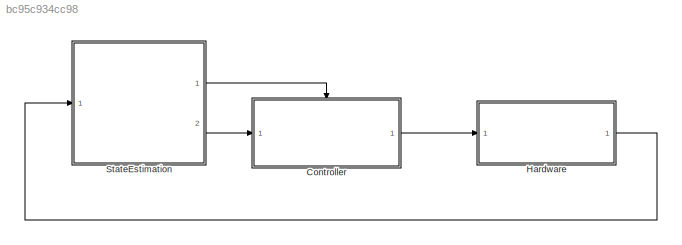
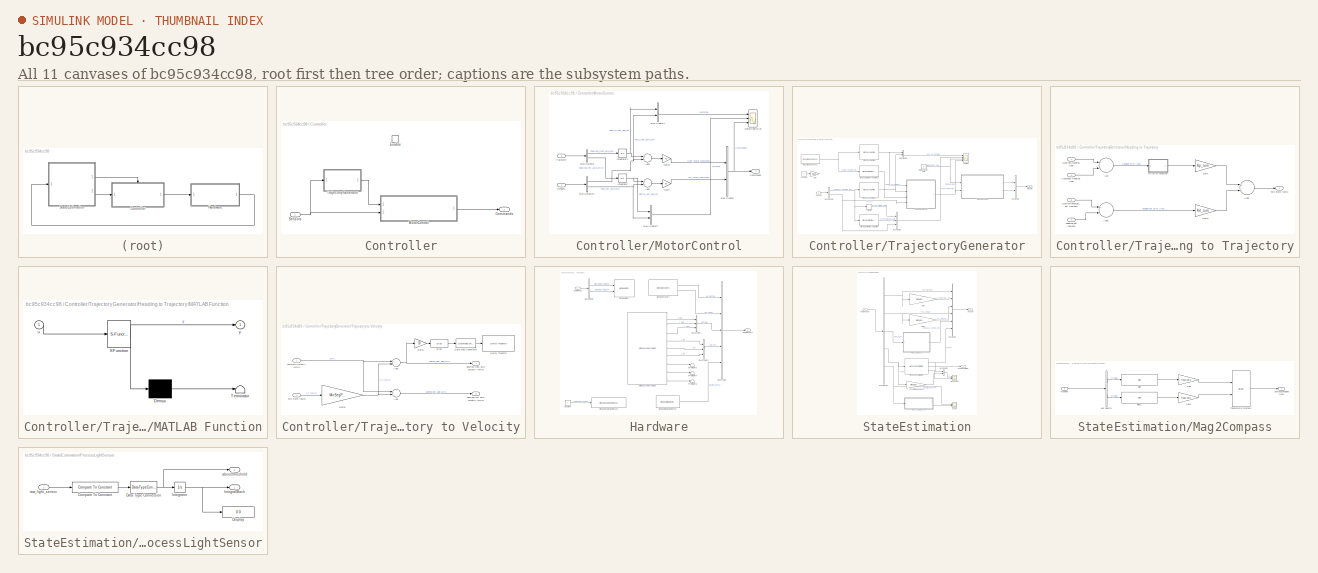
[diagram: thumbnail index - all 11 canvases of the model, root first then tree order]
MODEL slx_bc95c934cc98
KIND model
CONFIG PreLoadFcn = TS = 0.1;\nkp = 5; % motor proportional control constant\nKp_turn = 1; % Proportional feedback constant for heading control\nKd_turn = 0.1; % Derivative feedback constant for heading control\nMinSeg_Parameters\nmagXbias	= -27.850358;\nmagZbias	= -65.539659;\nmagXgain	= 0.013988;\nmagZgain	= 0.014555;\nRSTime = [0.0 10.0 20.0 20.5 21.0 21.5 22.0 22.5 23.0 23.5 24.0 24.5 25.0 35.0 35.5 36.0 36.5 37.0 37.5 38...<+1258ch>
BLOCK [SubSystem] Controller
  FunctionWithSeparateData = off
  MaskHideContents = off
  MinAlgLoopOccurrences = off
  Opaque = off
  Ports = [1, 1, 1]
  PropExecContextOutsideSubsystem = off
  RTWSystemCode = Auto
  RequestExecContextInheritance = off
BLOCK [Outport] Controller/Commands
  IconDisplay = Port number
BLOCK [EnablePort] Controller/Enable
  Ports = []
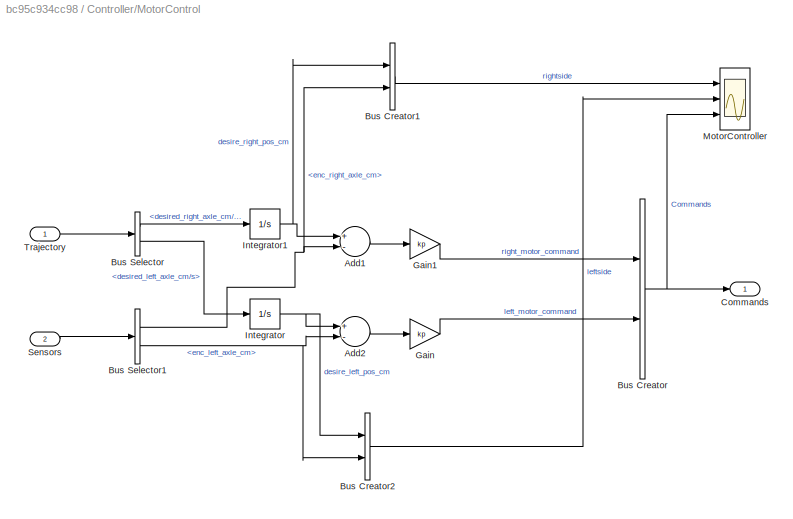
BLOCK [SubSystem] Controller/MotorControl
  FunctionWithSeparateData = off
  MaskHideContents = off
  MinAlgLoopOccurrences = off
  Opaque = off
  Ports = [2, 1]
  PropExecContextOutsideSubsystem = off
  RTWSystemCode = Auto
  RequestExecContextInheritance = off
BLOCK [Sum] Controller/MotorControl/Add1
  InputSameDT = off
  Inputs = +-
  OutDataTypeStr = Inherit: Inherit via internal rule
  Ports = [2, 1]
  SaturateOnIntegerOverflow = off
BLOCK [Sum] Controller/MotorControl/Add2
  InputSameDT = off
  Inputs = +-
  OutDataTypeStr = Inherit: Inherit via internal rule
  Ports = [2, 1]
  SaturateOnIntegerOverflow = off
BLOCK [BusCreator] Controller/MotorControl/Bus Creator
  DisplayOption = bar
  Inputs = 2
  Ports = [2, 1]
BLOCK [BusCreator] Controller/MotorControl/Bus Creator1
  DisplayOption = bar
  Inputs = 2
  Ports = [2, 1]
BLOCK [BusCreator] Controller/MotorControl/Bus Creator2
  DisplayOption = bar
  Inputs = 2
  Ports = [2, 1]
BLOCK [BusSelector] Controller/MotorControl/Bus Selector
  OutputSignals = desired_right_axle_cm/s,desired_left_axle_cm/s
  Ports = [1, 2]
BLOCK [BusSelector] Controller/MotorControl/Bus Selector1
  OutputSignals = enc_right_axle_cm,enc_left_axle_cm
  Ports = [1, 2]
BLOCK [Outport] Controller/MotorControl/Commands
  IconDisplay = Port number
BLOCK [Gain] Controller/MotorControl/Gain
  Gain = kp
  OutDataTypeStr = Inherit: Inherit via internal rule
  ParamDataTypeStr = Inherit: Inherit via internal rule
  SaturateOnIntegerOverflow = off
BLOCK [Gain] Controller/MotorControl/Gain1
  Gain = kp
  OutDataTypeStr = Inherit: Inherit via internal rule
  ParamDataTypeStr = Inherit: Inherit via internal rule
  SaturateOnIntegerOverflow = off
BLOCK [Integrator] Controller/MotorControl/Integrator
  Ports = [1, 1]
BLOCK [Integrator] Controller/MotorControl/Integrator1
  Ports = [1, 1]
BLOCK [Scope] Controller/MotorControl/MotorController
  DataFormat = StructureWithTime
  Floating = off
  LimitDataPoints = off
  NumInputPorts = 3
  Ports = [3]
  SampleTime = 0
  SaveName = MCData
  SaveToWorkspace = on
  ShowLegends = off
  TimeRange = 10
  YMax = 800~800~650
  YMin = -700~-700~0
  ZoomMode = yonly
BLOCK [Inport] Controller/MotorControl/Sensors
  IconDisplay = Port number
  Port = 2
BLOCK [Inport] Controller/MotorControl/Trajectory
  IconDisplay = Port number
BLOCK [Inport] Controller/Sensors
  IconDisplay = Port number
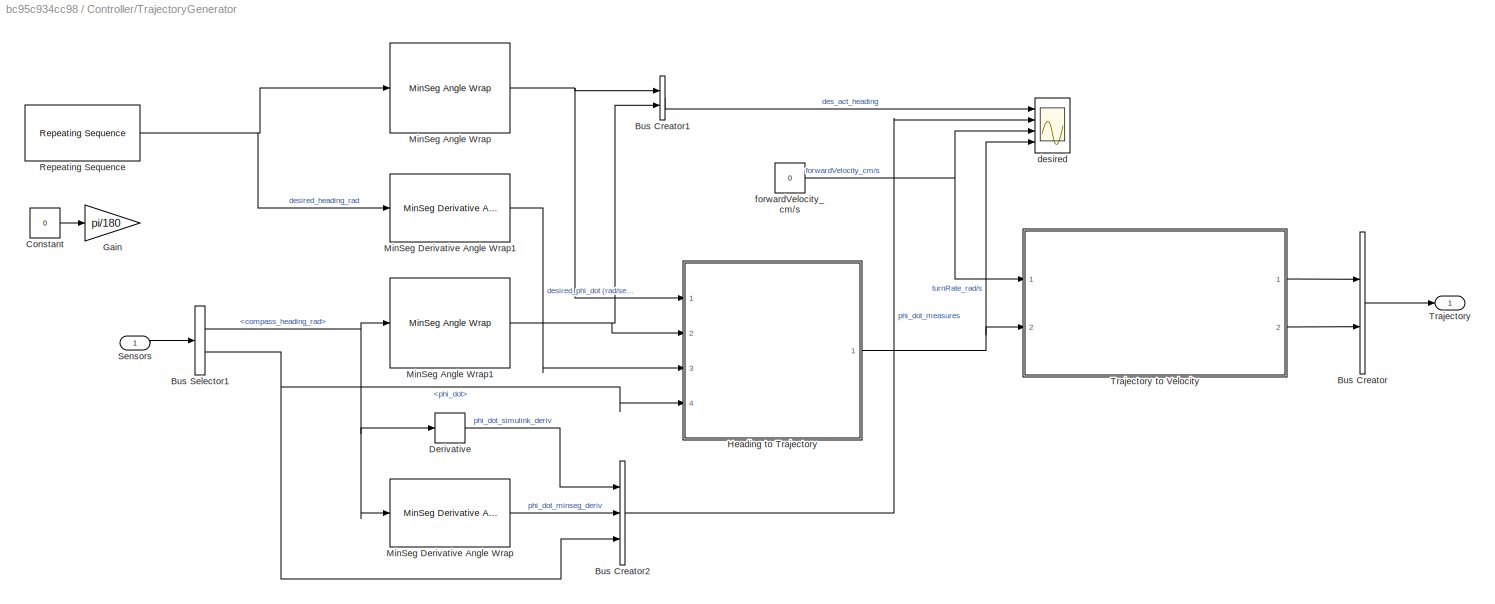
BLOCK [SubSystem] Controller/TrajectoryGenerator
  FunctionWithSeparateData = off
  MaskHideContents = off
  MinAlgLoopOccurrences = off
  Opaque = off
  Ports = [1, 1]
  PropExecContextOutsideSubsystem = off
  RTWSystemCode = Auto
  RequestExecContextInheritance = off
BLOCK [BusCreator] Controller/TrajectoryGenerator/Bus Creator
  DisplayOption = bar
  Inputs = 2
  Ports = [2, 1]
BLOCK [BusCreator] Controller/TrajectoryGenerator/Bus Creator1
  DisplayOption = bar
  Inputs = 2
  Ports = [2, 1]
BLOCK [BusCreator] Controller/TrajectoryGenerator/Bus Creator2
  DisplayOption = bar
  Inputs = 3
  Ports = [3, 1]
BLOCK [BusSelector] Controller/TrajectoryGenerator/Bus Selector1
  OutputSignals = compass_heading_rad,phi_dot
  Ports = [1, 2]
BLOCK [Constant] Controller/TrajectoryGenerator/Constant
  Value = 0
BLOCK [Derivative] Controller/TrajectoryGenerator/Derivative
BLOCK [Gain] Controller/TrajectoryGenerator/Gain
  Gain = pi/180
  OutDataTypeStr = Inherit: Inherit via internal rule
  ParamDataTypeStr = Inherit: Inherit via internal rule
  SaturateOnIntegerOverflow = off
BLOCK [SubSystem] Controller/TrajectoryGenerator/Heading to Trajectory
  FunctionWithSeparateData = off
  MaskHideContents = off
  MinAlgLoopOccurrences = off
  Opaque = off
  Ports = [4, 1]
  PropExecContextOutsideSubsystem = off
  RTWSystemCode = Auto
  RequestExecContextInheritance = off
BLOCK [Sum] Controller/TrajectoryGenerator/Heading to Trajectory/Add
  InputSameDT = off
  Inputs = +-
  OutDataTypeStr = Inherit: Inherit via internal rule
  Ports = [2, 1]
  SaturateOnIntegerOverflow = off
BLOCK [Sum] Controller/TrajectoryGenerator/Heading to Trajectory/Add1
  InputSameDT = off
  Inputs = +-
  OutDataTypeStr = Inherit: Inherit via internal rule
  Ports = [2, 1]
  SaturateOnIntegerOverflow = off
BLOCK [Sum] Controller/TrajectoryGenerator/Heading to Trajectory/Add2
  InputSameDT = off
  OutDataTypeStr = Inherit: Inherit via internal rule
  Ports = [2, 1]
  SaturateOnIntegerOverflow = off
BLOCK [Inport] Controller/TrajectoryGenerator/Heading to Trajectory/Compass Heading (rad)
  IconDisplay = Port number
  Port = 2
BLOCK [Inport] Controller/TrajectoryGenerator/Heading to Trajectory/Desired Heading (rad)
  IconDisplay = Port number
BLOCK [Inport] Controller/TrajectoryGenerator/Heading to Trajectory/Desired heading_dot (rad//sec)
  IconDisplay = Port number
  Port = 3
BLOCK [Gain] Controller/TrajectoryGenerator/Heading to Trajectory/Gain
  Gain = Kp_turn
  OutDataTypeStr = Inherit: Inherit via internal rule
  ParamDataTypeStr = Inherit: Inherit via internal rule
  SaturateOnIntegerOverflow = off
BLOCK [Gain] Controller/TrajectoryGenerator/Heading to Trajectory/Gain1
  Gain = Kd_turn
  OutDataTypeStr = Inherit: Inherit via internal rule
  ParamDataTypeStr = Inherit: Inherit via internal rule
  SaturateOnIntegerOverflow = off
BLOCK [SubSystem] Controller/TrajectoryGenerator/Heading to Trajectory/MATLAB Function
  ErrorFcn = Stateflow.Translate.translate
  FunctionWithSeparateData = off
  MaskHideContents = off
  MinAlgLoopOccurrences = off
  Opaque = off
  PermitHierarchicalResolution = ExplicitOnly
  Ports = [1, 1]
  PropExecContextOutsideSubsystem = off
  RTWSystemCode = Auto
  RequestExecContextInheritance = off
  SFBlockType = MATLAB Function
  TreatAsAtomicUnit = on
BLOCK [Demux] Controller/TrajectoryGenerator/Heading to Trajectory/MATLAB Function/ Demux 
  Outputs = 1
  Ports = [1, 1]
BLOCK [S-Function] Controller/TrajectoryGenerator/Heading to Trajectory/MATLAB Function/ SFunction 
  EnableBusSupport = on
  FunctionName = sf_sfun
  PortCounts = [1 2]
  Ports = [1, 2]
  Tag = Stateflow S-Function CompassCartBox 2
BLOCK [Terminator] Controller/TrajectoryGenerator/Heading to Trajectory/MATLAB Function/ Terminator 
BLOCK [Inport] Controller/TrajectoryGenerator/Heading to Trajectory/MATLAB Function/u
  IconDisplay = Port number
BLOCK [Outport] Controller/TrajectoryGenerator/Heading to Trajectory/MATLAB Function/y
  IconDisplay = Port number
BLOCK [Outport] Controller/TrajectoryGenerator/Heading to Trajectory/Turn Rate (rad//s)
  IconDisplay = Port number
BLOCK [Inport] Controller/TrajectoryGenerator/Heading to Trajectory/heading_dot (rad//sec)
  IconDisplay = Port number
  Port = 4
BLOCK [Reference] Controller/TrajectoryGenerator/MinSeg Angle Wrap  REF=MinSegLibrary_V2/MinSeg Angle Wrap
  Ports = [1, 1]
  SourceBlock = MinSegLibrary_V2/MinSeg Angle Wrap
  SourceType = Wrap Angle
BLOCK [Reference] Controller/TrajectoryGenerator/MinSeg Angle Wrap1  REF=MinSegLibrary_V2/MinSeg Angle Wrap
  Ports = [1, 1]
  SourceBlock = MinSegLibrary_V2/MinSeg Angle Wrap
  SourceType = Wrap Angle
BLOCK [Reference] Controller/TrajectoryGenerator/MinSeg Derivative Angle Wrap  REF=MinSegLibrary_V2/MinSeg Derivative Angle Wrap
  Ports = [1, 1]
  SourceBlock = MinSegLibrary_V2/MinSeg Derivative Angle Wrap
  SourceType = Derivative with angle wrap
  daw_init_state = 0
  daw_ts = TS
BLOCK [Reference] Controller/TrajectoryGenerator/MinSeg Derivative Angle Wrap1  REF=MinSegLibrary_V2/MinSeg Derivative Angle Wrap
  Ports = [1, 1]
  SourceBlock = MinSegLibrary_V2/MinSeg Derivative Angle Wrap
  SourceType = Derivative with angle wrap
  daw_init_state = 0
  daw_ts = TS
BLOCK [Reference] Controller/TrajectoryGenerator/Repeating Sequence  REF=simulink/Sources/Repeating
Sequence
  Ports = [0, 1]
  SourceBlock = simulink/Sources/Repeating\nSequence
  SourceType = Repeating table
  rep_seq_t = RSTime
  rep_seq_y = RSHeading
BLOCK [Inport] Controller/TrajectoryGenerator/Sensors
  IconDisplay = Port number
BLOCK [Outport] Controller/TrajectoryGenerator/Trajectory
  IconDisplay = Port number
BLOCK [SubSystem] Controller/TrajectoryGenerator/Trajectory to Velocity
  FunctionWithSeparateData = off
  MaskHideContents = off
  MinAlgLoopOccurrences = off
  Opaque = off
  Ports = [2, 2]
  PropExecContextOutsideSubsystem = off
  RTWSystemCode = Auto
  RequestExecContextInheritance = off
BLOCK [Sum] Controller/TrajectoryGenerator/Trajectory to Velocity/Add
  InputSameDT = off
  OutDataTypeStr = Inherit: Inherit via internal rule
  Ports = [2, 1]
  SaturateOnIntegerOverflow = off
BLOCK [Sum] Controller/TrajectoryGenerator/Trajectory to Velocity/Add1
  InputSameDT = off
  Inputs = +-
  OutDataTypeStr = Inherit: Inherit via internal rule
  Ports = [2, 1]
  SaturateOnIntegerOverflow = off
BLOCK [Bias] Controller/TrajectoryGenerator/Trajectory to Velocity/Bias
  Bias = 100
  Commented = on
  SaturateOnIntegerOverflow = off
BLOCK [DataTypeConversion] Controller/TrajectoryGenerator/Trajectory to Velocity/Data Type Conversion
  Commented = on
  OutDataTypeStr = uint8
  RndMeth = Floor
  SaturateOnIntegerOverflow = off
BLOCK [Inport] Controller/TrajectoryGenerator/Trajectory to Velocity/Forward Velocity (cm//s)
  IconDisplay = Port number
BLOCK [Gain] Controller/TrajectoryGenerator/Trajectory to Velocity/Gain2
  Commented = on
  Gain = 10
  OutDataTypeStr = Inherit: Inherit via internal rule
  ParamDataTypeStr = Inherit: Inherit via internal rule
  SaturateOnIntegerOverflow = off
BLOCK [Gain] Controller/TrajectoryGenerator/Trajectory to Velocity/Gain6
  Gain = MinSegParam.robotWidth
  OutDataTypeStr = Inherit: Inherit via internal rule
  ParamDataTypeStr = Inherit: Inherit via internal rule
  SaturateOnIntegerOverflow = off
BLOCK [Reference] Controller/TrajectoryGenerator/Trajectory to Velocity/Serial Transmit  REF=arduinolib/Serial Transmit
  Commented = on
  Ports = [1]
  SourceBlock = arduinolib/Serial Transmit
  SourceType = Arduino Serial Transmit
  portNumber = 0
BLOCK [Inport] Controller/TrajectoryGenerator/Trajectory to Velocity/Turn Rate (rad//s)
  IconDisplay = Port number
  Port = 2
BLOCK [Outport] Controller/TrajectoryGenerator/Trajectory to Velocity/desired left axle velocity (cm//s)
  IconDisplay = Port number
  Port = 2
BLOCK [Outport] Controller/TrajectoryGenerator/Trajectory to Velocity/desired right axle velocity (cm//s)
  IconDisplay = Port number
BLOCK [Scope] Controller/TrajectoryGenerator/desired
  DataFormat = StructureWithTime
  Floating = off
  LimitDataPoints = off
  NumInputPorts = 4
  Ports = [4]
  SampleTime = 0
  SaveName = HeadingData
  SaveToWorkspace = on
  ShowLegends = on
  TimeRange = 10
  YMax = 4~10~1~0.35
  YMin = -4~-70~-1~-0.1
BLOCK [Constant] Controller/TrajectoryGenerator/forwardVelocity_cm//s
  Value = 0
BLOCK [SubSystem] Hardware
  FunctionWithSeparateData = off
  MaskHideContents = off
  MinAlgLoopOccurrences = off
  Opaque = off
  Ports = [1, 1]
  PropExecContextOutsideSubsystem = off
  RTWSystemCode = Auto
  RequestExecContextInheritance = off
BLOCK [BusCreator] Hardware/Bus Creator
  DisplayOption = bar
  Inputs = 5
  Ports = [5, 1]
BLOCK [BusCreator] Hardware/Bus Creator1
  DisplayOption = bar
  Inputs = 3
  Ports = [3, 1]
BLOCK [BusCreator] Hardware/Bus Creator2
  DisplayOption = bar
  Inputs = 3
  Ports = [3, 1]
BLOCK [BusSelector] Hardware/Bus Selector
  OutputSignals = right_motor_command,left_motor_command
  Ports = [1, 2]
BLOCK [Inport] Hardware/Commands
  IconDisplay = Port number
BLOCK [Constant] Hardware/Constant
BLOCK [Reference] Hardware/MinSeg AccelGryoMagn  REF=MinSegLibrary_V2/MinSeg AccelGryoMagn
  Ports = [0, 9]
  SourceBlock = MinSegLibrary_V2/MinSeg AccelGryoMagn
  SourceType = MinSeg MagnetometerGryo
  maskTS = TS
BLOCK [Reference] Hardware/MinSeg EnableLightSensor  REF=MinSegLibrary_V2/MinSeg EnableLightSensor
  Ports = [1]
  SourceBlock = MinSegLibrary_V2/MinSeg EnableLightSensor
  SourceType = MinSeg Enable Light Sensor
BLOCK [Reference] Hardware/MinSeg Encoders  REF=MinSegLibrary_V2/MinSeg Encoders
  Ports = [0, 2]
  SourceBlock = MinSegLibrary_V2/MinSeg Encoders
  SourceType = MinSeg Encoders
  maskTS = TS
BLOCK [Reference] Hardware/MinSeg Motors  REF=MinSegLibrary_V2/MinSeg Motors
  Ports = [2]
  SourceBlock = MinSegLibrary_V2/MinSeg Motors
  SourceType = MinSeg Motors
BLOCK [Reference] Hardware/MinSeg OpticalLightSensor  REF=MinSegLibrary_V2/MinSeg OpticalLightSensor
  Ports = [0, 1]
  SourceBlock = MinSegLibrary_V2/MinSeg OpticalLightSensor
  SourceType = MinSeg Light Sensor
  maskTS = TS
BLOCK [Outport] Hardware/RawSensors
  IconDisplay = Port number
BLOCK [Terminator] Hardware/Terminator3
BLOCK [Terminator] Hardware/Terminator4
BLOCK [Terminator] Hardware/Terminator5
BLOCK [SubSystem] StateEstimation
  FunctionWithSeparateData = off
  MaskHideContents = off
  MinAlgLoopOccurrences = off
  Opaque = off
  Ports = [1, 2]
  PropExecContextOutsideSubsystem = off
  RTWSystemCode = Auto
  RequestExecContextInheritance = off
BLOCK [BusCreator] StateEstimation/Bus Creator
  DisplayOption = bar
  Inputs = 6
  Ports = [6, 1]
BLOCK [BusCreator] StateEstimation/Bus Creator1
  DisplayOption = bar
  Inputs = 2
  Ports = [2, 1]
BLOCK [BusSelector] StateEstimation/Bus Selector
  OutputSignals = enc_right_rad,enc_left_rad,raw_mag,raw_gyro.y_rot,raw_light_sensor
  Ports = [1, 5]
BLOCK [Outport] StateEstimation/EnableController
  IconDisplay = Port number
BLOCK [Gain] StateEstimation/Gain
  Gain = MinSegParam.wheelRadius
  OutDataTypeStr = Inherit: Inherit via internal rule
  ParamDataTypeStr = Inherit: Inherit via internal rule
  SaturateOnIntegerOverflow = off
BLOCK [Gain] StateEstimation/Gain1
  Gain = MinSegParam.wheelRadius
  OutDataTypeStr = Inherit: Inherit via internal rule
  ParamDataTypeStr = Inherit: Inherit via internal rule
  SaturateOnIntegerOverflow = off
BLOCK [Scope] StateEstimation/GryoScope
  DataFormat = StructureWithTime
  Floating = off
  MaxDataPoints = 10000
  NumInputPorts = 2
  Ports = [2]
  SampleTime = 0
  SaveName = GyroScopeData
  SaveToWorkspace = on
  ShowLegends = off
  YMax = 2.75~-0.00448989
  YMin = -1.25~-0.00448989
BLOCK [SubSystem] StateEstimation/Mag2Compass
  FunctionWithSeparateData = off
  MaskHideContents = off
  MinAlgLoopOccurrences = off
  Opaque = off
  Ports = [1, 1]
  PropExecContextOutsideSubsystem = off
  RTWSystemCode = Auto
  RequestExecContextInheritance = off
BLOCK [Bias] StateEstimation/Mag2Compass/Bias
  Bias = -magXbias
  SaturateOnIntegerOverflow = off
BLOCK [Bias] StateEstimation/Mag2Compass/Bias1
  Bias = -magZbias
  SaturateOnIntegerOverflow = off
BLOCK [BusSelector] StateEstimation/Mag2Compass/Bus Selector
  OutputSignals = x_mag,z_mag
  Ports = [1, 2]
BLOCK [Outport] StateEstimation/Mag2Compass/CompassHeading (rads)
  IconDisplay = Port number
BLOCK [Gain] StateEstimation/Mag2Compass/Gain
  Gain = magXgain
  OutDataTypeStr = Inherit: Inherit via internal rule
  ParamDataTypeStr = Inherit: Inherit via internal rule
  SaturateOnIntegerOverflow = off
BLOCK [Gain] StateEstimation/Mag2Compass/Gain1
  Gain = magZgain
  OutDataTypeStr = Inherit: Inherit via internal rule
  ParamDataTypeStr = Inherit: Inherit via internal rule
  SaturateOnIntegerOverflow = off
BLOCK [Inport] StateEstimation/Mag2Compass/MagRaw
  IconDisplay = Port number
BLOCK [Trigonometry] StateEstimation/Mag2Compass/Trigonometric Function1
  Operator = atan2
  Ports = [2, 1]
BLOCK [Reference] StateEstimation/MinSeg Gyro Calibration  REF=MinSegLibrary_V2/MinSeg Gyro Calibration
  Ports = [1, 3]
  SourceBlock = MinSegLibrary_V2/MinSeg Gyro Calibration
  SourceType = MinSeg Gyro Calibrate
BLOCK [SubSystem] StateEstimation/ProcessLightSensor
  FunctionWithSeparateData = off
  MaskHideContents = off
  MinAlgLoopOccurrences = off
  Opaque = off
  Ports = [1, 2]
  PropExecContextOutsideSubsystem = off
  RTWSystemCode = Auto
  RequestExecContextInheritance = off
BLOCK [Reference] StateEstimation/ProcessLightSensor/Compare To Constant  REF=simulink/Logic and Bit
Operations/Compare
To Constant
  OutDataTypeStr = uint8
  Ports = [1, 1]
  SourceBlock = simulink/Logic and Bit\nOperations/Compare\nTo Constant
  SourceType = Compare To Constant
  ZeroCross = on
  const = 450
  relop = >=
BLOCK [DataTypeConversion] StateEstimation/ProcessLightSensor/Data Type Conversion
  OutDataTypeStr = double
  RndMeth = Floor
  SaturateOnIntegerOverflow = off
BLOCK [Display] StateEstimation/ProcessLightSensor/Display
  Decimation = 1
  Ports = [1]
BLOCK [Outport] StateEstimation/ProcessLightSensor/IntegralBlack
  IconDisplay = Port number
BLOCK [Integrator] StateEstimation/ProcessLightSensor/Integrator
  Ports = [1, 1]
BLOCK [Outport] StateEstimation/ProcessLightSensor/abovethreshold
  IconDisplay = Port number
  Port = 2
BLOCK [Inport] StateEstimation/ProcessLightSensor/raw_light_sensor
  IconDisplay = Port number
BLOCK [Inport] StateEstimation/RawSensors
  IconDisplay = Port number
BLOCK [Scope] StateEstimation/Scope
  DataFormat = StructureWithTime
  Floating = off
  NumInputPorts = 2
  Ports = [2]
  SampleTime = 0
  SaveName = ScopeData2
  ShowLegends = off
  YMax = 650~1
  YMin = 250~0
BLOCK [Outport] StateEstimation/Sensors
  IconDisplay = Port number
  Port = 2
BLOCK [Gain] StateEstimation/conver to radians//sed2
  Gain = MinSegParam.GS
  OutDataTypeStr = Inherit: Inherit via internal rule
  ParamDataTypeStr = Inherit: Inherit via internal rule
  SaturateOnIntegerOverflow = off
LINE Controller/MotorControl/Add1:1 -> Controller/MotorControl/Gain1:1
LINE Controller/MotorControl/Add2:1 -> Controller/MotorControl/Gain:1
LINE Controller/MotorControl/Bus Creator1:1 -> Controller/MotorControl/MotorController:1
LINE Controller/MotorControl/Bus Creator2:1 -> Controller/MotorControl/MotorController:2
NET Controller/MotorControl/Bus Creator:1 -> Controller/MotorControl/Commands:1, Controller/MotorControl/MotorController:3
NET Controller/MotorControl/Bus Selector1:1 -> Controller/MotorControl/Add1:2, Controller/MotorControl/Bus Creator1:2
NET Controller/MotorControl/Bus Selector1:2 -> Controller/MotorControl/Add2:2, Controller/MotorControl/Bus Creator2:2
LINE Controller/MotorControl/Bus Selector:1 -> Controller/MotorControl/Integrator1:1
LINE Controller/MotorControl/Bus Selector:2 -> Controller/MotorControl/Integrator:1
LINE Controller/MotorControl/Gain1:1 -> Controller/MotorControl/Bus Creator:1
LINE Controller/MotorControl/Gain:1 -> Controller/MotorControl/Bus Creator:2
NET Controller/MotorControl/Integrator1:1 -> Controller/MotorControl/Add1:1, Controller/MotorControl/Bus Creator1:1
NET Controller/MotorControl/Integrator:1 -> Controller/MotorControl/Add2:1, Controller/MotorControl/Bus Creator2:1
LINE Controller/MotorControl/Sensors:1 -> Controller/MotorControl/Bus Selector1:1
LINE Controller/MotorControl/Trajectory:1 -> Controller/MotorControl/Bus Selector:1
LINE Controller/MotorControl:1 -> Controller/Commands:1
NET Controller/Sensors:1 -> Controller/MotorControl:2, Controller/TrajectoryGenerator:1
LINE Controller/TrajectoryGenerator/Bus Creator1:1 -> Controller/TrajectoryGenerator/desired:1
LINE Controller/TrajectoryGenerator/Bus Creator2:1 -> Controller/TrajectoryGenerator/desired:2
LINE Controller/TrajectoryGenerator/Bus Creator:1 -> Controller/TrajectoryGenerator/Trajectory:1
NET Controller/TrajectoryGenerator/Bus Selector1:1 -> Controller/TrajectoryGenerator/Derivative:1, Controller/TrajectoryGenerator/MinSeg Angle Wrap1:1, Controller/TrajectoryGenerator/MinSeg Derivative Angle Wrap:1
NET Controller/TrajectoryGenerator/Bus Selector1:2 -> Controller/TrajectoryGenerator/Bus Creator2:3, Controller/TrajectoryGenerator/Heading to Trajectory:4
LINE Controller/TrajectoryGenerator/Constant:1 -> Controller/TrajectoryGenerator/Gain:1
LINE Controller/TrajectoryGenerator/Derivative:1 -> Controller/TrajectoryGenerator/Bus Creator2:1
LINE Controller/TrajectoryGenerator/Heading to Trajectory/Add1:1 -> Controller/TrajectoryGenerator/Heading to Trajectory/Gain1:1
LINE Controller/TrajectoryGenerator/Heading to Trajectory/Add2:1 -> Controller/TrajectoryGenerator/Heading to Trajectory/Turn Rate (rad//s):1
LINE Controller/TrajectoryGenerator/Heading to Trajectory/Add:1 -> Controller/TrajectoryGenerator/Heading to Trajectory/MATLAB Function:1
LINE Controller/TrajectoryGenerator/Heading to Trajectory/Compass Heading (rad):1 -> Controller/TrajectoryGenerator/Heading to Trajectory/Add:2
LINE Controller/TrajectoryGenerator/Heading to Trajectory/Desired Heading (rad):1 -> Controller/TrajectoryGenerator/Heading to Trajectory/Add:1
LINE Controller/TrajectoryGenerator/Heading to Trajectory/Desired heading_dot (rad//sec):1 -> Controller/TrajectoryGenerator/Heading to Trajectory/Add1:1
LINE Controller/TrajectoryGenerator/Heading to Trajectory/Gain1:1 -> Controller/TrajectoryGenerator/Heading to Trajectory/Add2:2
LINE Controller/TrajectoryGenerator/Heading to Trajectory/Gain:1 -> Controller/TrajectoryGenerator/Heading to Trajectory/Add2:1
LINE Controller/TrajectoryGenerator/Heading to Trajectory/MATLAB Function:1 -> Controller/TrajectoryGenerator/Heading to Trajectory/Gain:1
LINE Controller/TrajectoryGenerator/Heading to Trajectory/heading_dot (rad//sec):1 -> Controller/TrajectoryGenerator/Heading to Trajectory/Add1:2
NET Controller/TrajectoryGenerator/Heading to Trajectory:1 -> Controller/TrajectoryGenerator/Trajectory to Velocity:2, Controller/TrajectoryGenerator/desired:4
NET Controller/TrajectoryGenerator/MinSeg Angle Wrap1:1 -> Controller/TrajectoryGenerator/Bus Creator1:2, Controller/TrajectoryGenerator/Heading to Trajectory:2
NET Controller/TrajectoryGenerator/MinSeg Angle Wrap:1 -> Controller/TrajectoryGenerator/Bus Creator1:1, Controller/TrajectoryGenerator/Heading to Trajectory:1
LINE Controller/TrajectoryGenerator/MinSeg Derivative Angle Wrap1:1 -> Controller/TrajectoryGenerator/Heading to Trajectory:3
LINE Controller/TrajectoryGenerator/MinSeg Derivative Angle Wrap:1 -> Controller/TrajectoryGenerator/Bus Creator2:2
NET Controller/TrajectoryGenerator/Repeating Sequence:1 -> Controller/TrajectoryGenerator/MinSeg Angle Wrap:1, Controller/TrajectoryGenerator/MinSeg Derivative Angle Wrap1:1
LINE Controller/TrajectoryGenerator/Sensors:1 -> Controller/TrajectoryGenerator/Bus Selector1:1
NET Controller/TrajectoryGenerator/Trajectory to Velocity/Add1:1 -> Controller/TrajectoryGenerator/Trajectory to Velocity/Gain2:1, Controller/TrajectoryGenerator/Trajectory to Velocity/desired right axle velocity (cm//s):1
LINE Controller/TrajectoryGenerator/Trajectory to Velocity/Add:1 -> Controller/TrajectoryGenerator/Trajectory to Velocity/desired left axle velocity (cm//s):1
LINE Controller/TrajectoryGenerator/Trajectory to Velocity/Bias:1 -> Controller/TrajectoryGenerator/Trajectory to Velocity/Data Type Conversion:1
LINE Controller/TrajectoryGenerator/Trajectory to Velocity/Data Type Conversion:1 -> Controller/TrajectoryGenerator/Trajectory to Velocity/Serial Transmit:1
NET Controller/TrajectoryGenerator/Trajectory to Velocity/Forward Velocity (cm//s):1 -> Controller/TrajectoryGenerator/Trajectory to Velocity/Add1:1, Controller/TrajectoryGenerator/Trajectory to Velocity/Add:1
LINE Controller/TrajectoryGenerator/Trajectory to Velocity/Gain2:1 -> Controller/TrajectoryGenerator/Trajectory to Velocity/Bias:1
NET Controller/TrajectoryGenerator/Trajectory to Velocity/Gain6:1 -> Controller/TrajectoryGenerator/Trajectory to Velocity/Add1:2, Controller/TrajectoryGenerator/Trajectory to Velocity/Add:2
LINE Controller/TrajectoryGenerator/Trajectory to Velocity/Turn Rate (rad//s):1 -> Controller/TrajectoryGenerator/Trajectory to Velocity/Gain6:1
LINE Controller/TrajectoryGenerator/Trajectory to Velocity:1 -> Controller/TrajectoryGenerator/Bus Creator:1
LINE Controller/TrajectoryGenerator/Trajectory to Velocity:2 -> Controller/TrajectoryGenerator/Bus Creator:2
NET Controller/TrajectoryGenerator/forwardVelocity_cm//s:1 -> Controller/TrajectoryGenerator/Trajectory to Velocity:1, Controller/TrajectoryGenerator/desired:3
LINE Controller/TrajectoryGenerator:1 -> Controller/MotorControl:1
LINE Controller:1 -> Hardware:1
LINE Hardware/Bus Creator1:1 -> Hardware/Bus Creator:3
LINE Hardware/Bus Creator2:1 -> Hardware/Bus Creator:4
LINE Hardware/Bus Creator:1 -> Hardware/RawSensors:1
LINE Hardware/Bus Selector:1 -> Hardware/MinSeg Motors:1
LINE Hardware/Bus Selector:2 -> Hardware/MinSeg Motors:2
LINE Hardware/Commands:1 -> Hardware/Bus Selector:1
LINE Hardware/Constant:1 -> Hardware/MinSeg EnableLightSensor:1
LINE Hardware/MinSeg AccelGryoMagn:1 -> Hardware/Bus Creator1:1
LINE Hardware/MinSeg AccelGryoMagn:2 -> Hardware/Bus Creator1:2
LINE Hardware/MinSeg AccelGryoMagn:3 -> Hardware/Bus Creator1:3
LINE Hardware/MinSeg AccelGryoMagn:4 -> Hardware/Bus Creator2:1
LINE Hardware/MinSeg AccelGryoMagn:5 -> Hardware/Bus Creator2:2
LINE Hardware/MinSeg AccelGryoMagn:6 -> Hardware/Bus Creator2:3
LINE Hardware/MinSeg AccelGryoMagn:7 -> Hardware/Terminator3:1
LINE Hardware/MinSeg AccelGryoMagn:8 -> Hardware/Terminator4:1
LINE Hardware/MinSeg AccelGryoMagn:9 -> Hardware/Terminator5:1
LINE Hardware/MinSeg Encoders:1 -> Hardware/Bus Creator:1
LINE Hardware/MinSeg Encoders:2 -> Hardware/Bus Creator:2
LINE Hardware/MinSeg OpticalLightSensor:1 -> Hardware/Bus Creator:5
LINE Hardware:1 -> StateEstimation:1
LINE StateEstimation/Bus Creator1:1 -> StateEstimation/GryoScope:1
LINE StateEstimation/Bus Creator:1 -> StateEstimation/Sensors:1
NET StateEstimation/Bus Selector:1 -> StateEstimation/Bus Creator:1, StateEstimation/Gain:1
NET StateEstimation/Bus Selector:2 -> StateEstimation/Bus Creator:3, StateEstimation/Gain1:1
LINE StateEstimation/Bus Selector:3 -> StateEstimation/Mag2Compass:1
NET StateEstimation/Bus Selector:4 -> StateEstimation/MinSeg Gyro Calibration:1, StateEstimation/conver to radians//sed2:1
NET StateEstimation/Bus Selector:5 -> StateEstimation/ProcessLightSensor:1, StateEstimation/Scope:1
LINE StateEstimation/Gain1:1 -> StateEstimation/Bus Creator:4
LINE StateEstimation/Gain:1 -> StateEstimation/Bus Creator:2
LINE StateEstimation/Mag2Compass/Bias1:1 -> StateEstimation/Mag2Compass/Gain1:1
LINE StateEstimation/Mag2Compass/Bias:1 -> StateEstimation/Mag2Compass/Gain:1
LINE StateEstimation/Mag2Compass/Bus Selector:1 -> StateEstimation/Mag2Compass/Bias:1
LINE StateEstimation/Mag2Compass/Bus Selector:2 -> StateEstimation/Mag2Compass/Bias1:1
LINE StateEstimation/Mag2Compass/Gain1:1 -> StateEstimation/Mag2Compass/Trigonometric Function1:2
LINE StateEstimation/Mag2Compass/Gain:1 -> StateEstimation/Mag2Compass/Trigonometric Function1:1
LINE StateEstimation/Mag2Compass/MagRaw:1 -> StateEstimation/Mag2Compass/Bus Selector:1
LINE StateEstimation/Mag2Compass/Trigonometric Function1:1 -> StateEstimation/Mag2Compass/CompassHeading (rads):1
LINE StateEstimation/Mag2Compass:1 -> StateEstimation/Bus Creator:5
NET StateEstimation/MinSeg Gyro Calibration:1 -> StateEstimation/Bus Creator1:1, StateEstimation/Bus Creator:6
LINE StateEstimation/MinSeg Gyro Calibration:2 -> StateEstimation/EnableController:1
LINE StateEstimation/MinSeg Gyro Calibration:3 -> StateEstimation/GryoScope:2
LINE StateEstimation/ProcessLightSensor/Compare To Constant:1 -> StateEstimation/ProcessLightSensor/Data Type Conversion:1
NET StateEstimation/ProcessLightSensor/Data Type Conversion:1 -> StateEstimation/ProcessLightSensor/Integrator:1, StateEstimation/ProcessLightSensor/abovethreshold:1
NET StateEstimation/ProcessLightSensor/Integrator:1 -> StateEstimation/ProcessLightSensor/Display:1, StateEstimation/ProcessLightSensor/IntegralBlack:1
LINE StateEstimation/ProcessLightSensor/raw_light_sensor:1 -> StateEstimation/ProcessLightSensor/Compare To Constant:1
LINE StateEstimation/ProcessLightSensor:2 -> StateEstimation/Scope:2
LINE StateEstimation/RawSensors:1 -> StateEstimation/Bus Selector:1
LINE StateEstimation/conver to radians//sed2:1 -> StateEstimation/Bus Creator1:2
LINE StateEstimation:1 -> Controller:enable
LINE StateEstimation:2 -> Controller:1
note: NET lines group one-source signal fan-out (src -> all destinations, sorted); 1:1 wires keep LINE
